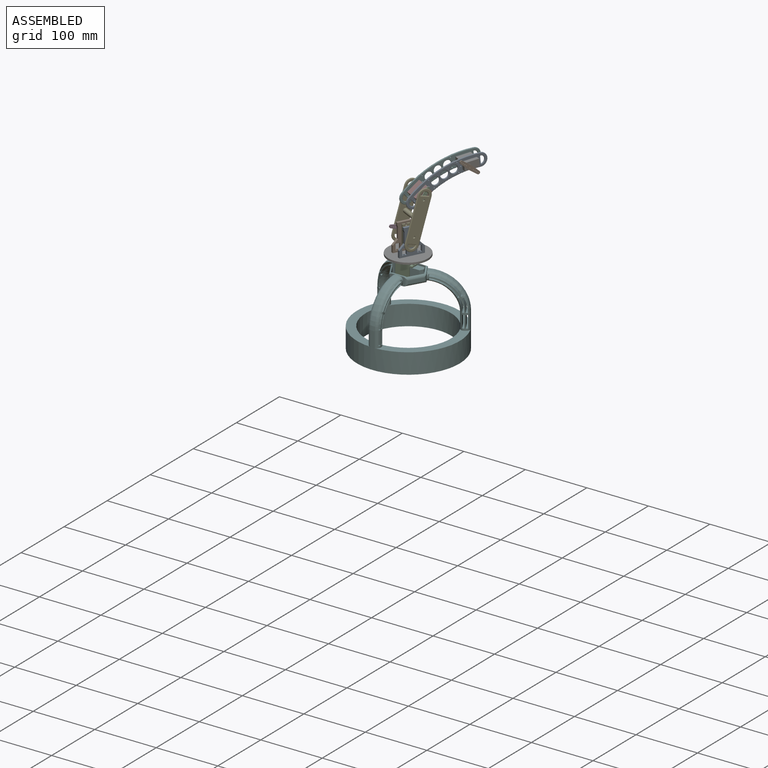
[diagram: assembled view]
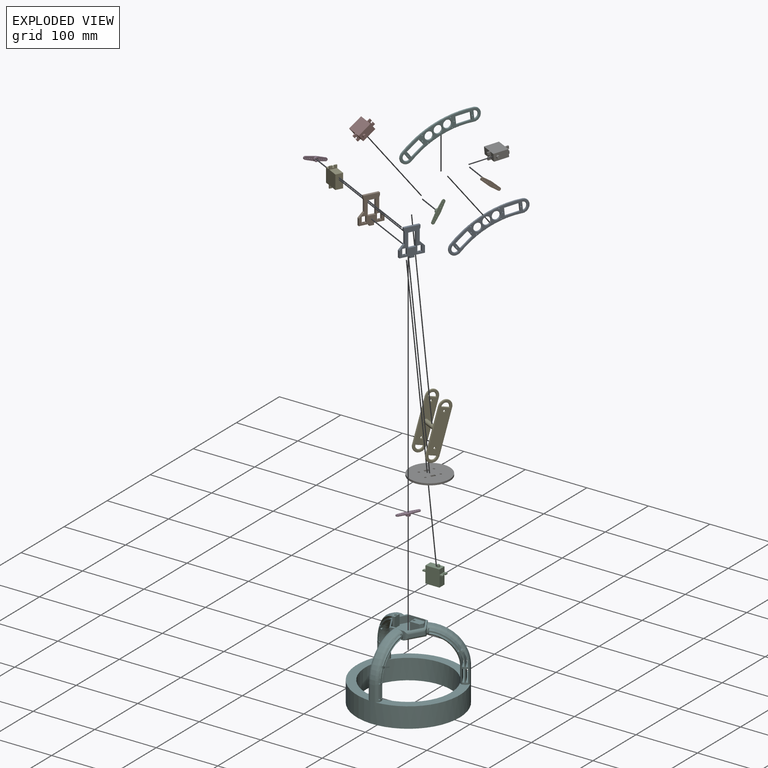
[diagram: exploded view]
GUIDED TOUR — MATED ASSEMBLY (Onshape document 5833d2684844fe110806e5fd, AutoMate assembly 5833d2684844fe110806e5fd_eefcba89f4eee4e6b97c06ca_92be6440ee8657cf6202d747_default)

This assembly has 15 components, labeled P0..P14 below (a component is one placed occurrence of a part; the same part can appear more than once), held together by 17 mates. A mate is a constraint between two components; its type names the relative motion it leaves free:
  FASTENED — locks the two components together rigidly (no relative motion),
  PARALLEL — keeps the two listed directions parallel,
  REVOLUTE — leaves rotation about the listed axis free (a hinge).
Axis/direction vectors are unit vectors and 'through' points are millimeter coordinates, both in the assembly's world frame.

MATES
  1. PARALLEL "Parallel 2": P14 <-> P0, direction (-0.044, -0.087, 0.995) through (37.46, 82.34, 259.15) mm
  2. REVOLUTE "Revolute 3": P9 <-> P14, axis (-0.891, 0.455, 0.000) through (49.95, 70.41, 252.75) mm
  3. PARALLEL "Parallel 3": P13 <-> P14, direction (0.044, 0.087, -0.995) through (26.51, 87.82, 259.14) mm
  4. REVOLUTE "Revolute 5": P10 <-> P4, axis (0.891, -0.455, 0.000) through (19.25, 6.36, 221.20) mm
  5. REVOLUTE "Revolute 2": P3 <-> P12, axis (0.891, -0.455, 0.000) through (-16.97, 8.48, 170.03) mm
  6. FASTENED "Fastened 9": P14 <-> P0, direction (-0.044, -0.087, 0.995) through (47.85, 91.07, 248.55) mm
  7. FASTENED "Fastened 7": P4 <-> P3, direction (0.891, -0.455, 0.000) through (-18.55, 9.29, 170.03) mm
  8. FASTENED "Fastened 6": P12 <-> P1, direction (-0.891, 0.455, 0.000) through (-6.93, 3.36, 175.87) mm
  9. FASTENED "Fastened 10": P14 <-> P13, direction (0.453, 0.886, 0.098) through (30.61, 98.58, 260.27) mm
  10. FASTENED "Fastened 3": P8 <-> P6, direction (0.000, 0.000, -1.000) through (9.78, -5.18, 137.77) mm
  11. REVOLUTE "Revolute 4": P10 <-> P7, axis (-0.891, 0.455, 0.000) through (17.66, 7.17, 221.20) mm
  12. FASTENED "Fastened 5": P6 <-> P11, direction (0.000, 0.000, -1.000) through (-0.35, 0.00, 137.77) mm
  13. FASTENED "Fastened 1": P2 <-> P5, direction (0.000, 0.000, -1.000) through (8.99, 0.00, 122.72) mm
  14. FASTENED "Fastened 8": P7 <-> P0, direction (-0.279, -0.546, 0.790) through (15.36, 27.44, 226.96) mm
  15. PARALLEL "Parallel 1": P0 <-> P7, direction (0.279, 0.546, -0.790) through (8.89, 12.03, 229.66) mm
  16. REVOLUTE "Revolute 1": P11 <-> P2, axis (0.000, 0.000, -1.000) through (-0.35, 0.00, 135.99) mm
  17. FASTENED "Fastened 2": P1 <-> P6, direction (0.000, 0.000, -1.000) through (-6.93, 3.36, 137.77) mm

ASSEMBLY ORDER
  1. P8 — the base component [order verified]
  2. P12 [order verified]
  3. P1 [order verified]
  4. P4 [order verified]
  5. P3 [order verified]
  6. P6 [order verified]
  7. P7 [order verified]
  8. P10 [order verified]
  9. P11 [order verified]
  10. P2 [order verified]
  11. P13 [order verified]
  12. P0 [order verified]
  13. P5 [order verified]
  14. P9 [order verified]
  15. P14 [order verified]
(P3, P10 verified with a relaxed clearance tolerance: the source model stores slight part interference there.)
Order-tag legend:
  [order verified] — this step's position reverses a verified removal order: the component was checked to insert without passing through the ones already placed.

Of the 15 components, 4 carry the full construction recipe — the FeatureScript program that regenerates the part's solid from scratch; the rest are supplied as boundary geometry only.
Because this assembly has more than 12 components, the tour below covers the 12 most significant ones individually (every recipe-attached component first, then the largest by part volume), in assembly order; the remaining 3 are summarized together in a grouped section at the end.
Each toured component is shown spotlighted twice — in the assembled view, then in the exploded view, where a leader line traces a displaced component back to its assembled socket (saturated green if recipe-attached, orange if geometry-only; every other component desaturated gray) — followed by its recipe or geometry summary and the mates that hold it.
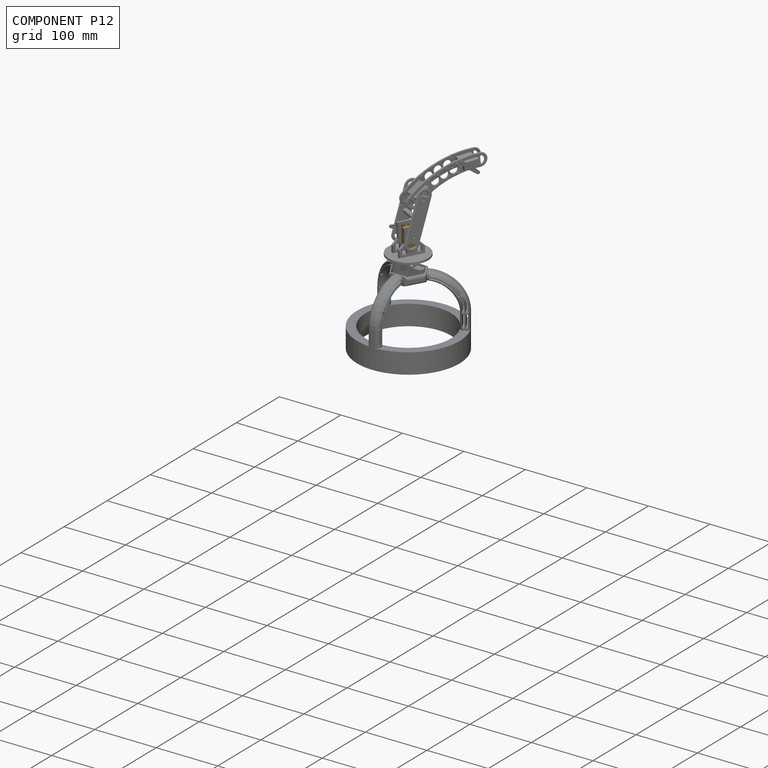
[diagram: component P12 — assembled]
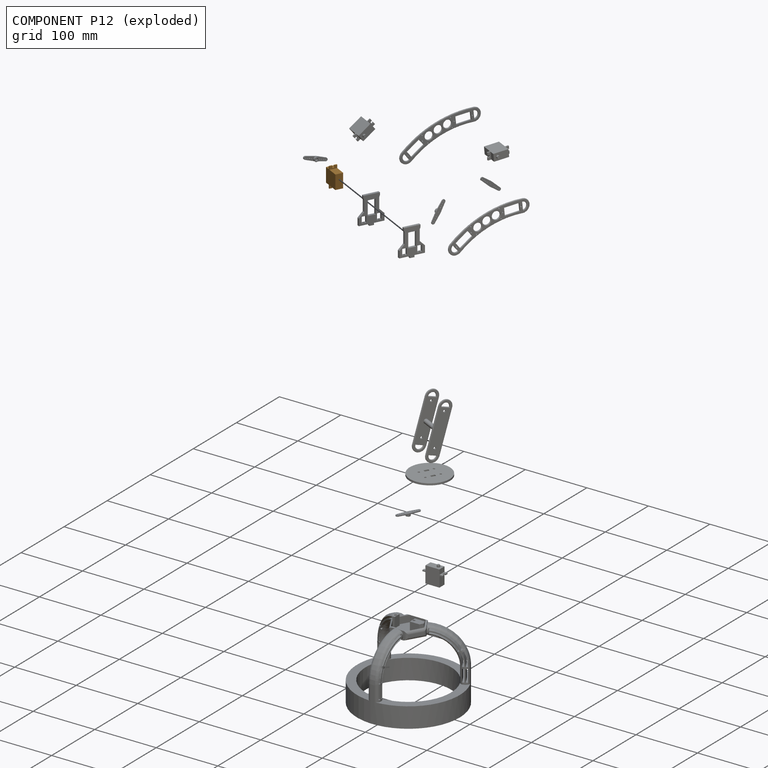
[diagram: component P12 — exploded]
COMPONENT P12 — geometry summary (no construction recipe available for this part):
  bounding box: 32.7 x 30.0 x 11.8 mm
  B-rep topology: 1 solid, 22 faces, 108 edges
  volume: 7407 mm^3 (64% of its bounding box)
  symmetry: mirror-symmetric across its z mid-plane
Held by: REVOLUTE mate "Revolute 2" to P3; FASTENED mate "Fastened 6" to P1.
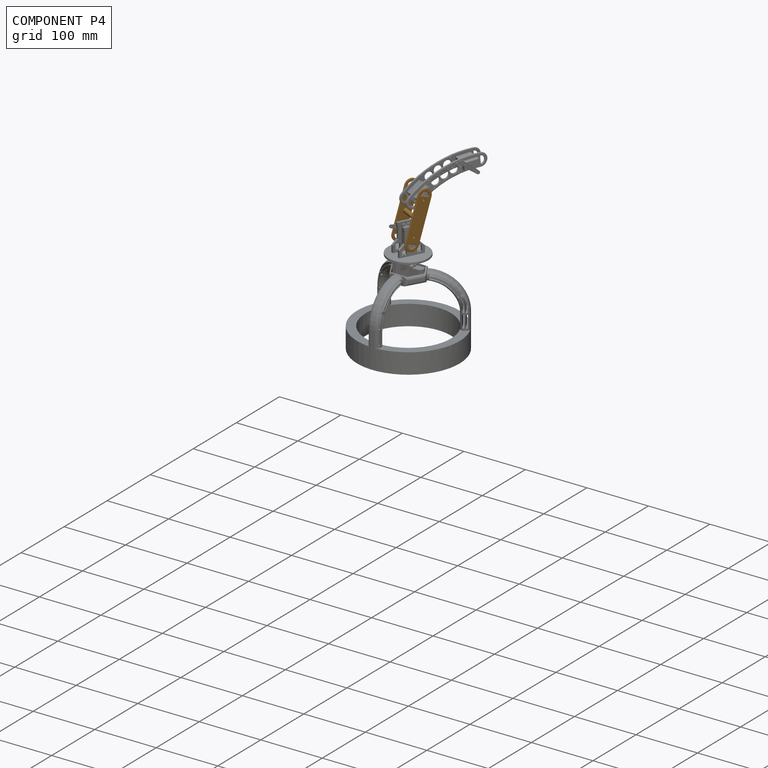
[diagram: component P4 — assembled]
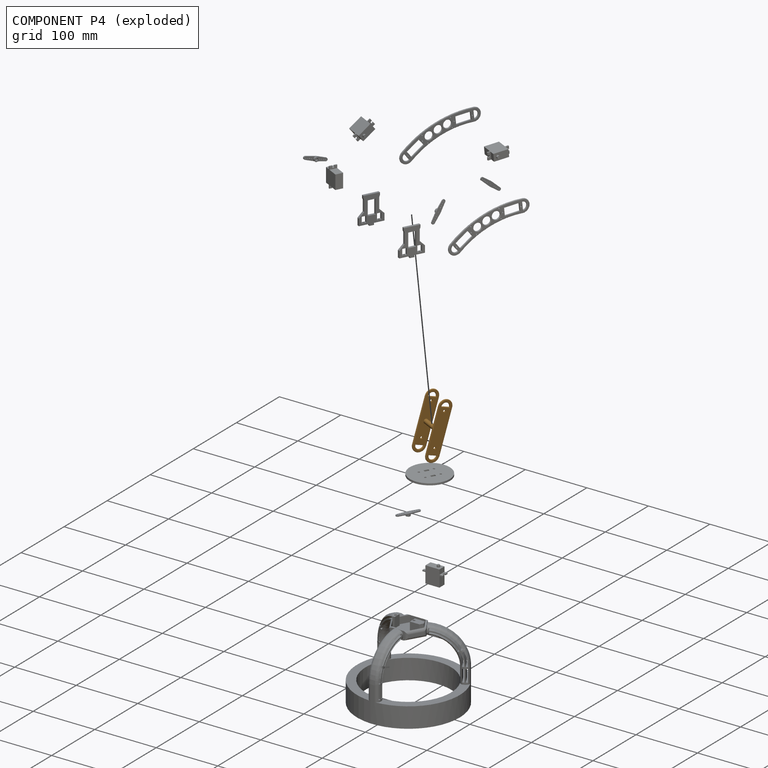
[diagram: component P4 — exploded]
COMPONENT P4 — geometry summary (no construction recipe available for this part):
  bounding box: 93.2 x 40.0 x 23.2 mm
  B-rep topology: 1 solid, 57 faces, 254 edges
  volume: 9747 mm^3 (11% of its bounding box)
  symmetry: 2-fold rotationally symmetric about the z axis; mirror-symmetric across its x mid-plane, y mid-plane
Held by: REVOLUTE mate "Revolute 5" to P10; FASTENED mate "Fastened 7" to P3.
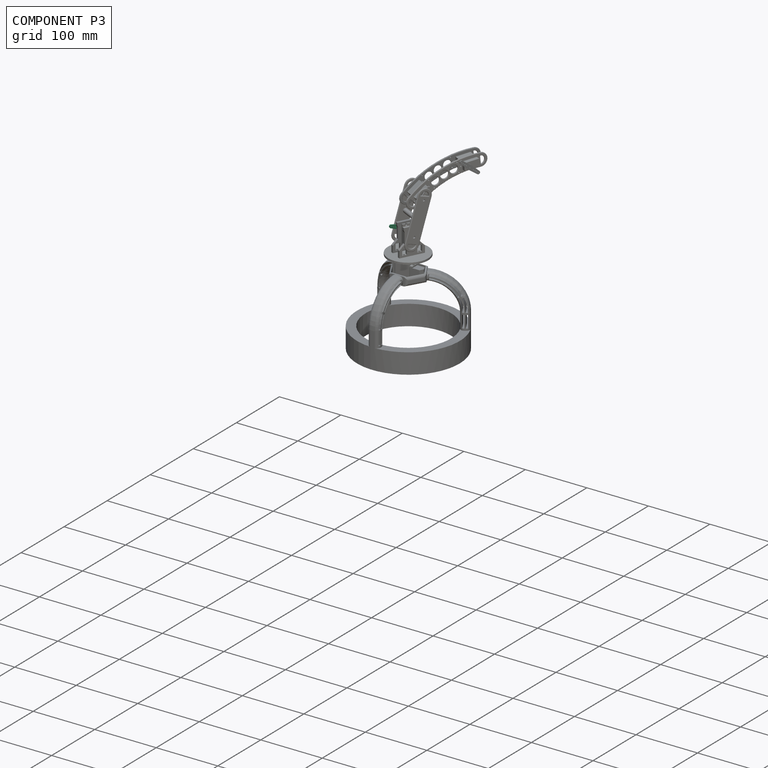
[diagram: component P3 — assembled]
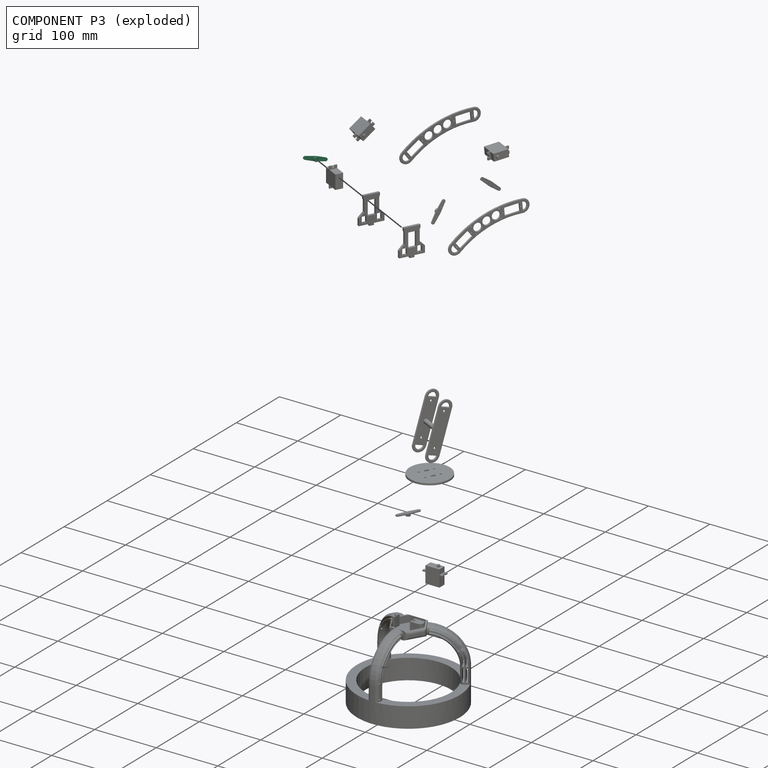
[diagram: component P3 — exploded]
COMPONENT P3 — recipe-attached (CADFS 00342071, mesh-verified: the recipe's output STEP matches this component's geometry to below the mesh-comparison resolution (tessellation chordal tolerance ~0.0577 mm)).
Held by: REVOLUTE mate "Revolute 2" to P12; FASTENED mate "Fastened 7" to P4.
Construction recipe (FeatureScript — the CAD program that rebuilds this solid; sketch coordinates are in the units given by the * unit suffixes, e.g. mm):

FeatureScript 1549;
import(path : "onshape/std/geometry.fs", version : "1549.0");
import(path : "onshape/std/common.fs", version : "1549.0");
const mm = millimeter;
const VERTEX = EntityType.VERTEX;
const EDGE = EntityType.EDGE;
const FACE = EntityType.FACE;
const BODY = EntityType.BODY;
function v(x, y){return vector(x, y);}
function OD(order){return orderDisambiguation(order);}
function OSD(set){return originalSetDisambiguation(set);}
function TD(topology){return topologyDisambiguation(topology);}
function TDD(query){return trueDependencyDisambiguation(query);}
function sQuery(a, b, c) {return sketchEntityQuery(a, b, c);}

annotation { "Feature Type Name" : "Feature", "Feature Type Description" : "" }
export const myFeature = defineFeature(function(context is Context, id is Id, definition is map)
    precondition{}
    {
        {
            var Q0;
            Q0=qCreatedBy(makeId("Top.planeOp"),FACE);
            var sketch = newSketch(context, id + "F0", { "sketchPlane" : qUnion([Q0])});
            skArc(sketch, "E0", {"start": v(-3.57, 0.48) * mm, "mid": v(0, -3.6) * mm, "end": v(3.57, 0.48) * mm, "construction": true});
            skArc(sketch, "E1", {"start": v(2.5, 16.4) * mm, "mid": v(0, 18.73) * mm, "end": v(-2.5, 16.4) * mm});
            skPoint(sketch, "E2", {"position": v(0, 18.73) * mm});
            skLineSegment(sketch, "E3", {"start": v(-3.6, 0) * mm, "end": v(-2.5, 16.4) * mm});
            skLineSegment(sketch, "E4", {"start": v(3.6, 0) * mm, "end": v(2.5, 16.4) * mm});
            skCircle(sketch, "E5", {"center": v(0, 16.05) * mm, "radius": 0.69 * mm});
            skCircle(sketch, "E6.0.1.0", {"center": v(0, 12.92) * mm, "radius": 0.69 * mm});
            skCircle(sketch, "E6.0.2.0", {"center": v(0, 9.79) * mm, "radius": 0.69 * mm});
            skCircle(sketch, "E6.0.3.0", {"center": v(0, 6.66) * mm, "radius": 0.69 * mm});
            skLineSegment(sketch, "E6.direction1", {"start": v(0, 16.05) * mm, "end": v(25, 16.05) * mm, "construction": true});
            skLineSegment(sketch, "E6.direction2", {"start": v(0, 16.05) * mm, "end": v(0, 12.92) * mm, "construction": true});
            skLineSegment(sketch, "E7", {"start": v(-16.15, 0) * mm, "end": v(19.67, 0) * mm, "construction": true});
            skCircle(sketch, "E8.MirrorC", {"center": v(0, -16.05) * mm, "radius": 0.69 * mm});
            skArc(sketch, "E9.MirrorCS", {"start": v(2.5, -16.4) * mm, "mid": v(0, -18.73) * mm, "end": v(-2.5, -16.4) * mm});
            skLineSegment(sketch, "E10.MirrorCS", {"start": v(0, -16.05) * mm, "end": v(0, -12.92) * mm, "construction": true});
            skCircle(sketch, "E11.MirrorC", {"center": v(0, -12.92) * mm, "radius": 0.69 * mm});
            skPoint(sketch, "E12.MirrorP", {"position": v(0, -18.73) * mm});
            skCircle(sketch, "E13.MirrorC", {"center": v(0, -9.79) * mm, "radius": 0.69 * mm});
            skCircle(sketch, "E14.MirrorC", {"center": v(0, -6.66) * mm, "radius": 0.69 * mm});
            skLineSegment(sketch, "E15.MirrorCS", {"start": v(0, -16.05) * mm, "end": v(25, -16.05) * mm, "construction": true});
            skLineSegment(sketch, "E16.MirrorCS", {"start": v(3.6, 0) * mm, "end": v(2.5, -16.4) * mm});
            skLineSegment(sketch, "E17.MirrorCS", {"start": v(-3.6, 0) * mm, "end": v(-2.5, -16.4) * mm});
            skSolve(sketch);
        }
        {
            var Q0;
            Q0 = qSketchRegion(id + "F0", true);
            extrude(context, id + "F1", {"entities" : qUnion([Q0]), "depth" : 1.78 * mm});
        }
        {
            var Q0;
            Q0=makeQuery(id+"F1.opExtrude","CAP_FACE",FACE,{"disambiguationData":[OSD([sQuery(id+"F0.wireOp",EDGE,"E1"),sQuery(id+"F0.wireOp",EDGE,"E3"),sQuery(id+"F0.wireOp",EDGE,"E4"),sQuery(id+"F0.wireOp",EDGE,"E5"),sQuery(id+"F0.wireOp",EDGE,"E6.0.1.0"),sQuery(id+"F0.wireOp",EDGE,"E6.0.2.0"),sQuery(id+"F0.wireOp",EDGE,"E6.0.3.0"),sQuery(id+"F0.wireOp",EDGE,"E8.MirrorC"),sQuery(id+"F0.wireOp",EDGE,"E9.MirrorCS"),sQuery(id+"F0.wireOp",EDGE,"E11.MirrorC"),sQuery(id+"F0.wireOp",EDGE,"E13.MirrorC"),sQuery(id+"F0.wireOp",EDGE,"E14.MirrorC"),sQuery(id+"F0.wireOp",EDGE,"E16.MirrorCS"),sQuery(id+"F0.wireOp",EDGE,"E17.MirrorCS")])],"isStart":false});
            var sketch = newSketch(context, id + "F2", { "sketchPlane" : qUnion([Q0])});
            skCircle(sketch, "E18", {"center": v(0, 0) * mm, "radius": 3.5 * mm});
            skCircle(sketch, "E19.0", {"center": v(0, 0) * mm, "radius": 2.12 * mm});
            skSolve(sketch);
        }
        {
            var Q0;
            Q0 = qSketchRegion(id + "F2", true);
            var Q1;
            Q1 = qConstructionFilter(qBodyType(qCreatedBy(id + "F2" ,EDGE), BodyType.WIRE), ConstructionObject.NO);
            extrude(context, id + "F3", {"entities" : qUnion([Q0]), "operationType" : NewBodyOperationType.ADD, "surfaceEntities" : qUnion([Q1]), "depth" : 3.02 * mm});
        }
        {
            var Q0;
            Q0=makeQuery(id+"F3.boolean.opBoolean","SPLIT",FACE,{"disambiguationData":[TD([makeQuery(id+"F3.opExtrude","SWEPT_FACE",FACE,{"disambiguationData":[OSD([sQuery(id+"F2.wireOp",EDGE,"E19.0")])]})])],"derivedFrom":makeQuery(id+"F1.opExtrude","CAP_FACE",FACE,{"disambiguationData":[OSD([sQuery(id+"F0.wireOp",EDGE,"E1"),sQuery(id+"F0.wireOp",EDGE,"E3"),sQuery(id+"F0.wireOp",EDGE,"E4"),sQuery(id+"F0.wireOp",EDGE,"E5"),sQuery(id+"F0.wireOp",EDGE,"E6.0.1.0"),sQuery(id+"F0.wireOp",EDGE,"E6.0.2.0"),sQuery(id+"F0.wireOp",EDGE,"E6.0.3.0"),sQuery(id+"F0.wireOp",EDGE,"E8.MirrorC"),sQuery(id+"F0.wireOp",EDGE,"E9.MirrorCS"),sQuery(id+"F0.wireOp",EDGE,"E11.MirrorC"),sQuery(id+"F0.wireOp",EDGE,"E13.MirrorC"),sQuery(id+"F0.wireOp",EDGE,"E14.MirrorC"),sQuery(id+"F0.wireOp",EDGE,"E16.MirrorCS"),sQuery(id+"F0.wireOp",EDGE,"E17.MirrorCS")])],"isStart":false})});
            var sketch = newSketch(context, id + "F4", { "sketchPlane" : qUnion([Q0])});
            skCircle(sketch, "E20", {"center": v(0, 0) * mm, "radius": 0.58 * mm});
            skSolve(sketch);
        }
        {
            var Q0;
            Q0 = qSketchRegion(id + "F4", true);
            extrude(context, id + "F5", {"entities" : qUnion([Q0]), "operationType" : NewBodyOperationType.REMOVE, "endBound" : BoundingType.UP_TO_NEXT, "oppositeDirection" : true, "depth" : 25 * mm});
        }
    });
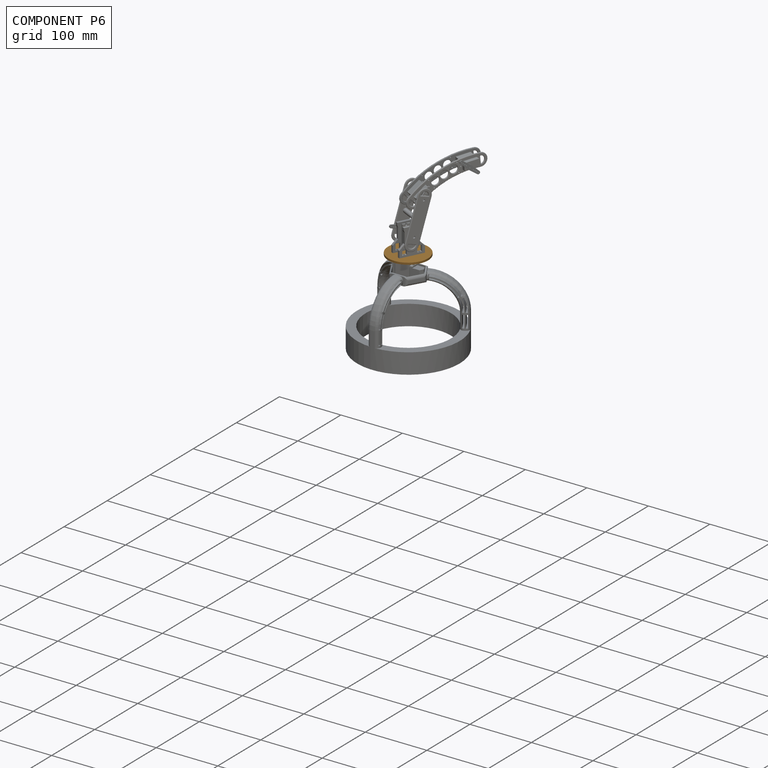
[diagram: component P6 — assembled]
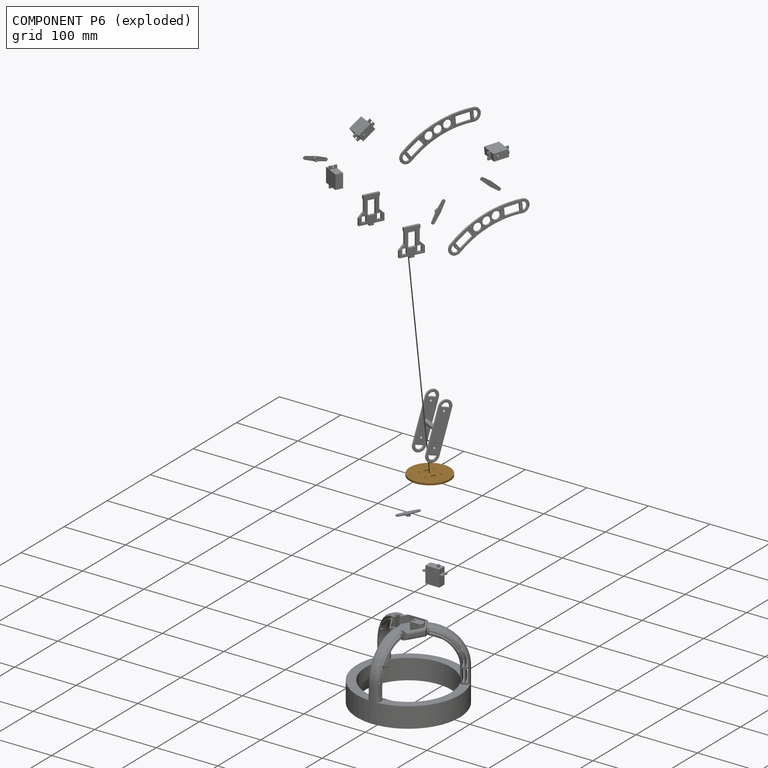
[diagram: component P6 — exploded]
COMPONENT P6 — geometry summary (no construction recipe available for this part):
  bounding box: 65.0 x 65.0 x 3.0 mm
  B-rep topology: 1 solid, 15 faces, 86 edges
  volume: 9690 mm^3 (76% of its bounding box)
  symmetry: 2-fold rotationally symmetric about the x axis; 2-fold rotationally symmetric about the y axis; 2-fold rotationally symmetric about the z axis; mirror-symmetric across its x mid-plane, y mid-plane, z mid-plane
Held by: FASTENED mate "Fastened 3" to P8; FASTENED mate "Fastened 5" to P11; FASTENED mate "Fastened 2" to P1.
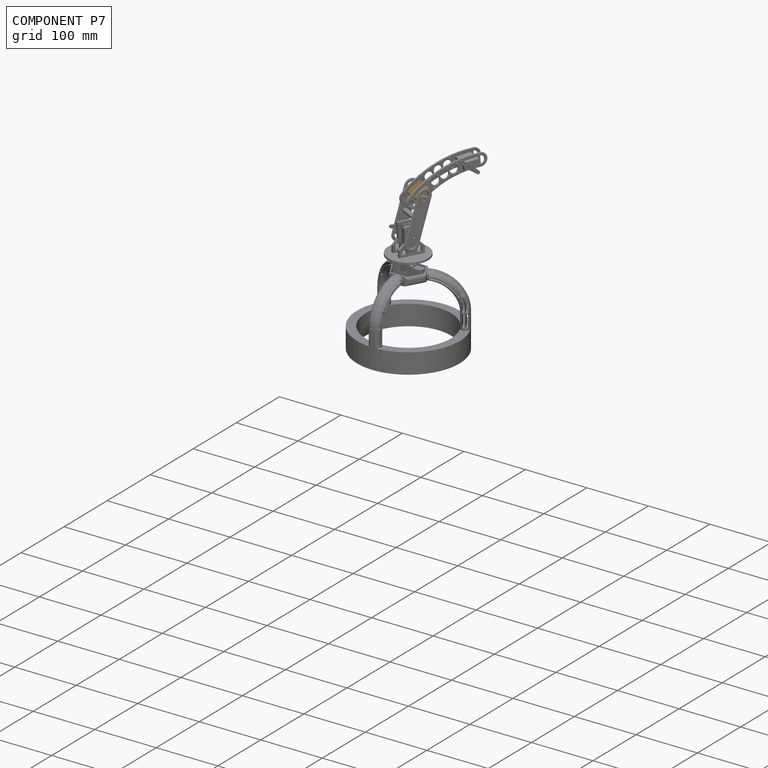
[diagram: component P7 — assembled]
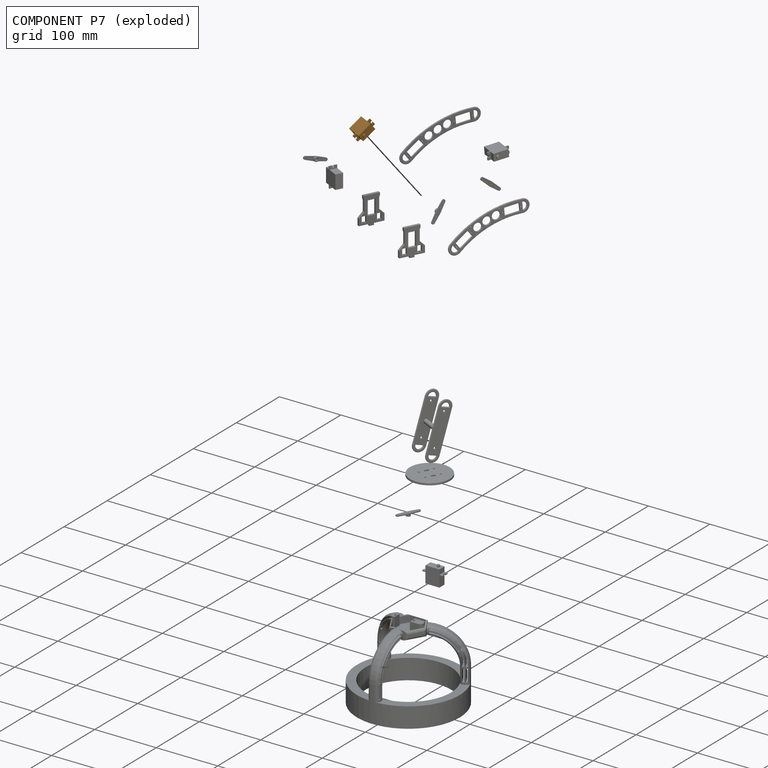
[diagram: component P7 — exploded]
COMPONENT P7 — geometry summary (no construction recipe available for this part):
  bounding box: 32.7 x 30.0 x 11.8 mm
  B-rep topology: 1 solid, 22 faces, 108 edges
  volume: 7407 mm^3 (64% of its bounding box)
  symmetry: mirror-symmetric across its z mid-plane
Held by: REVOLUTE mate "Revolute 4" to P10; FASTENED mate "Fastened 8" to P0; PARALLEL mate "Parallel 1" to P0.
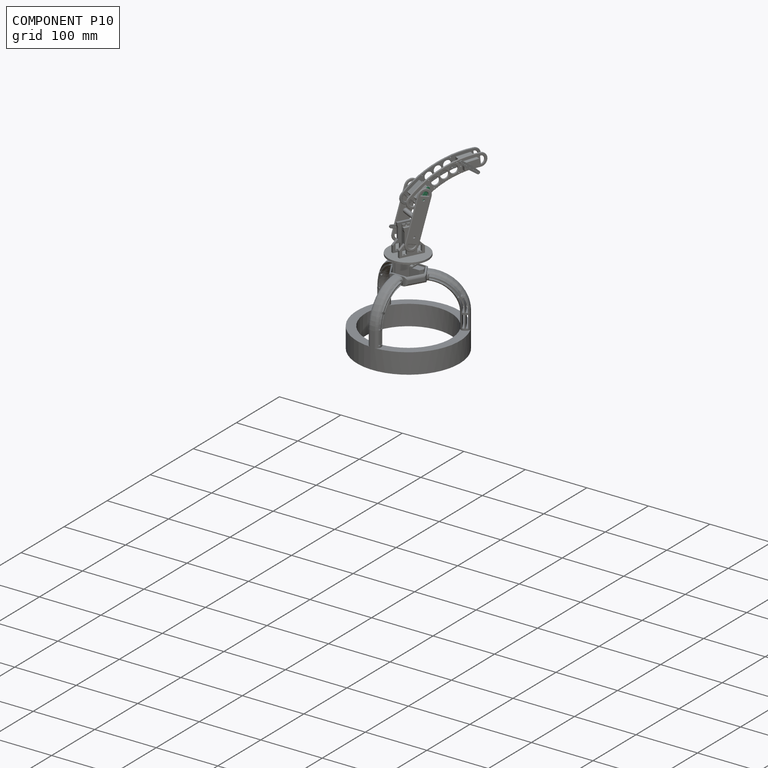
[diagram: component P10 — assembled]
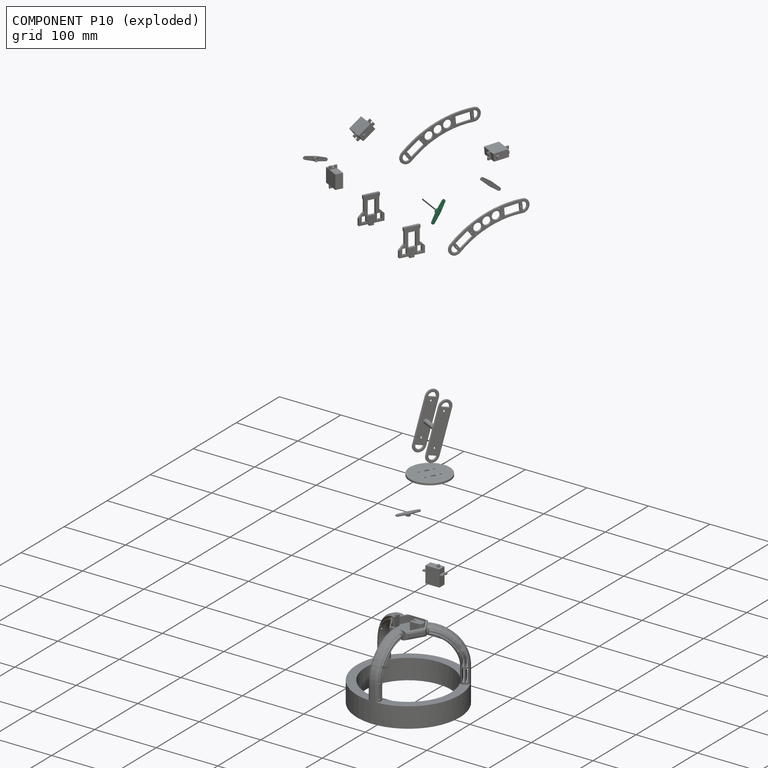
[diagram: component P10 — exploded]
COMPONENT P10 — same part as P3 (CADFS 00342071); its construction recipe is shown at P3.
Held by: REVOLUTE mate "Revolute 5" to P4; REVOLUTE mate "Revolute 4" to P7.
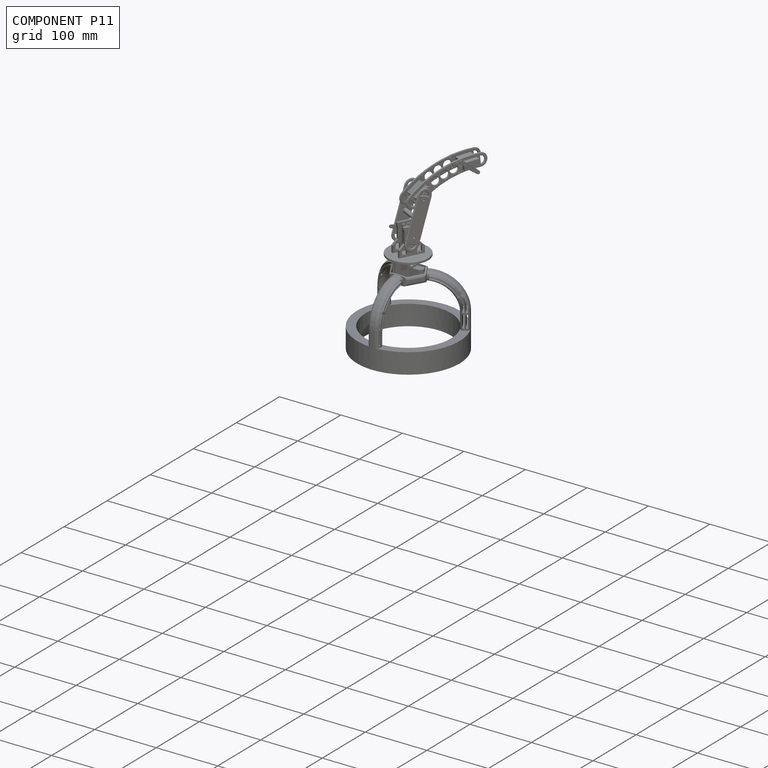
[diagram: component P11 — assembled]
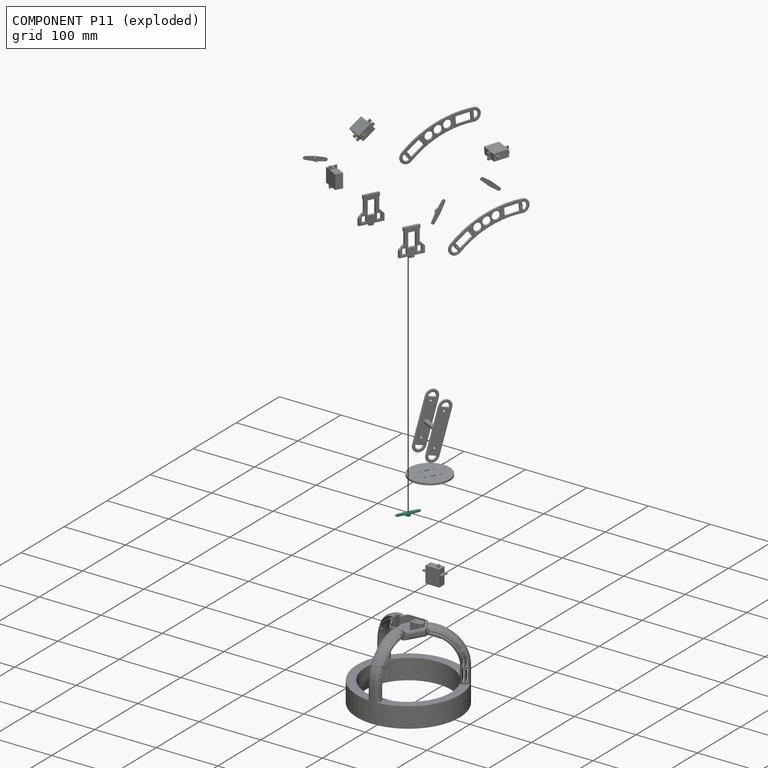
[diagram: component P11 — exploded]
COMPONENT P11 — same part as P3 (CADFS 00342071); its construction recipe is shown at P3.
Held by: FASTENED mate "Fastened 5" to P6; REVOLUTE mate "Revolute 1" to P2.
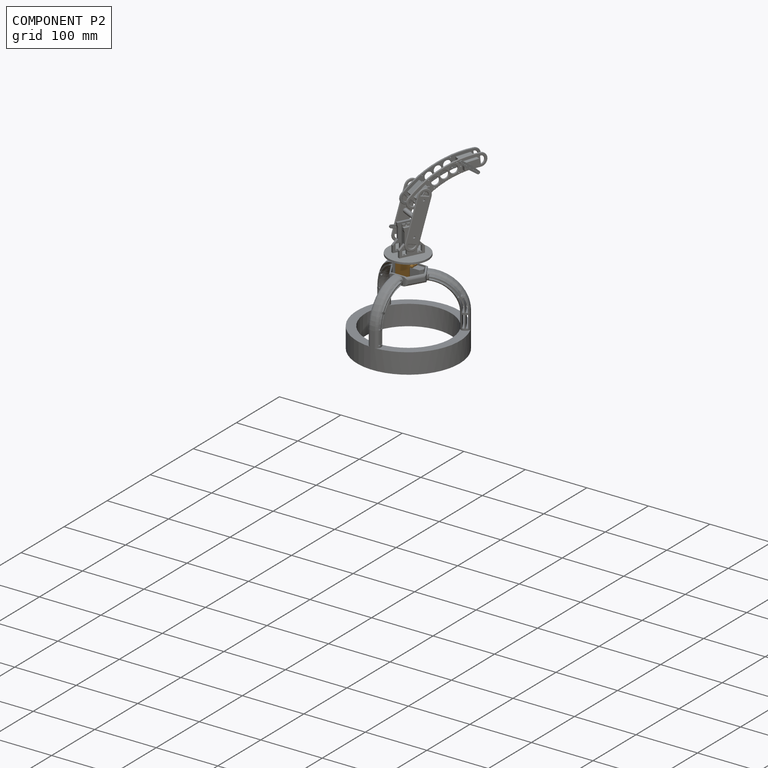
[diagram: component P2 — assembled]
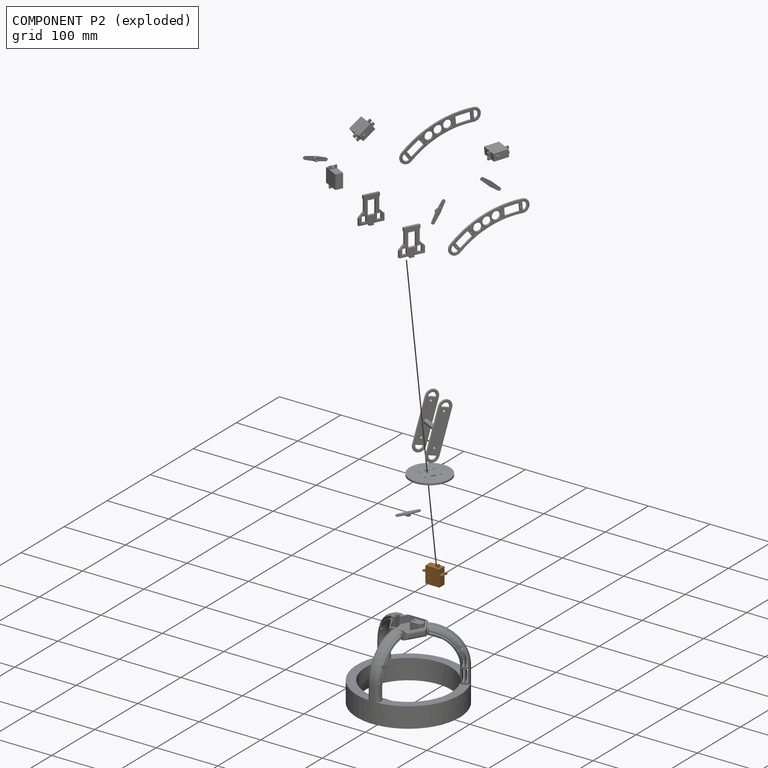
[diagram: component P2 — exploded]
COMPONENT P2 — geometry summary (no construction recipe available for this part):
  bounding box: 32.7 x 30.0 x 11.8 mm
  B-rep topology: 1 solid, 22 faces, 108 edges
  volume: 7407 mm^3 (64% of its bounding box)
  symmetry: mirror-symmetric across its z mid-plane
Held by: FASTENED mate "Fastened 1" to P5; REVOLUTE mate "Revolute 1" to P11.
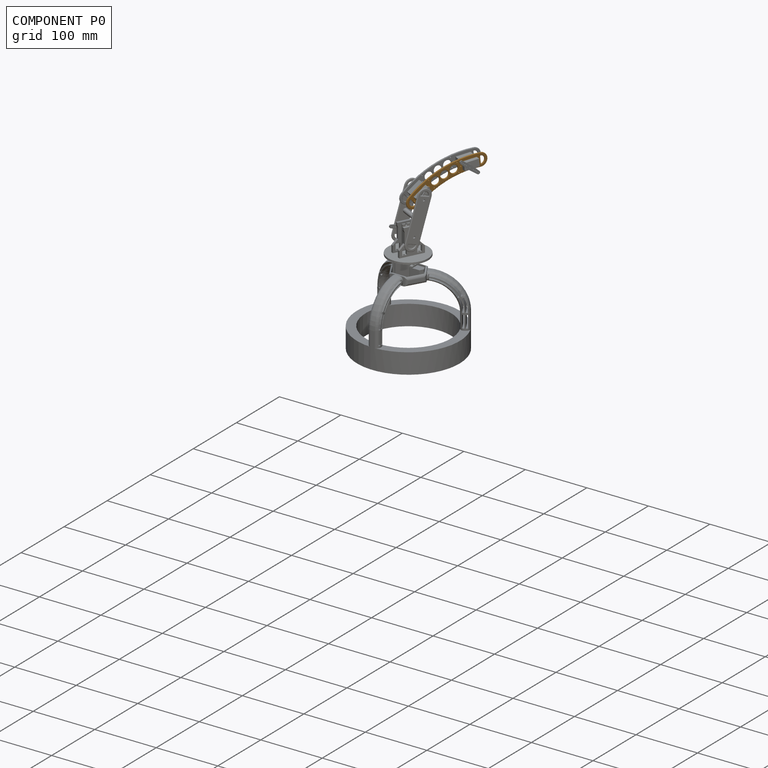
[diagram: component P0 — assembled]
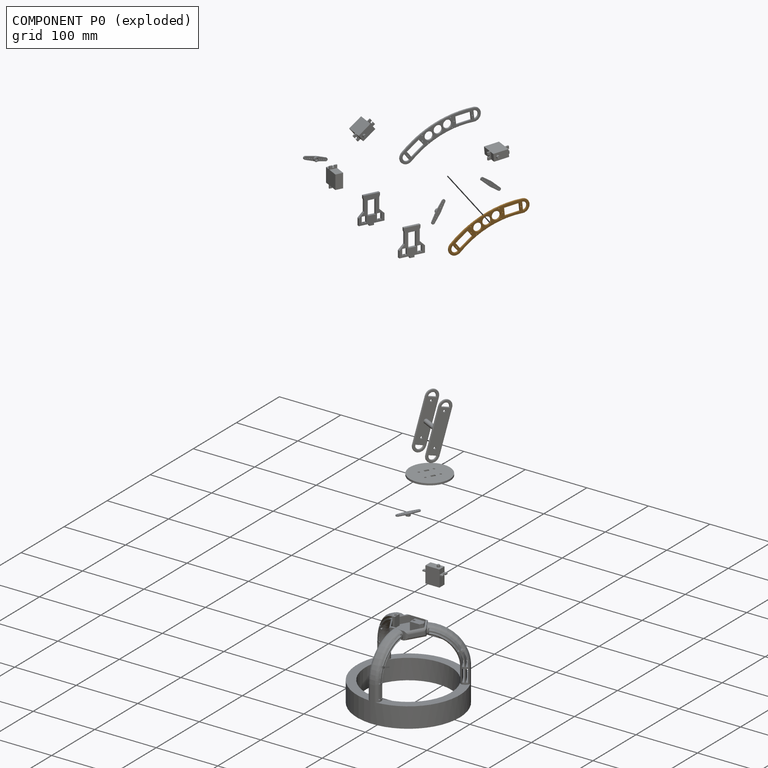
[diagram: component P0 — exploded]
COMPONENT P0 — geometry summary (no construction recipe available for this part):
  bounding box: 128.5 x 76.5 x 2.5 mm
  B-rep topology: 1 solid, 49 faces, 262 edges
  volume: 4003 mm^3 (16% of its bounding box)
  symmetry: mirror-symmetric across its y mid-plane
Held by: PARALLEL mate "Parallel 2" to P14; FASTENED mate "Fastened 9" to P14; FASTENED mate "Fastened 8" to P7; PARALLEL mate "Parallel 1" to P7.
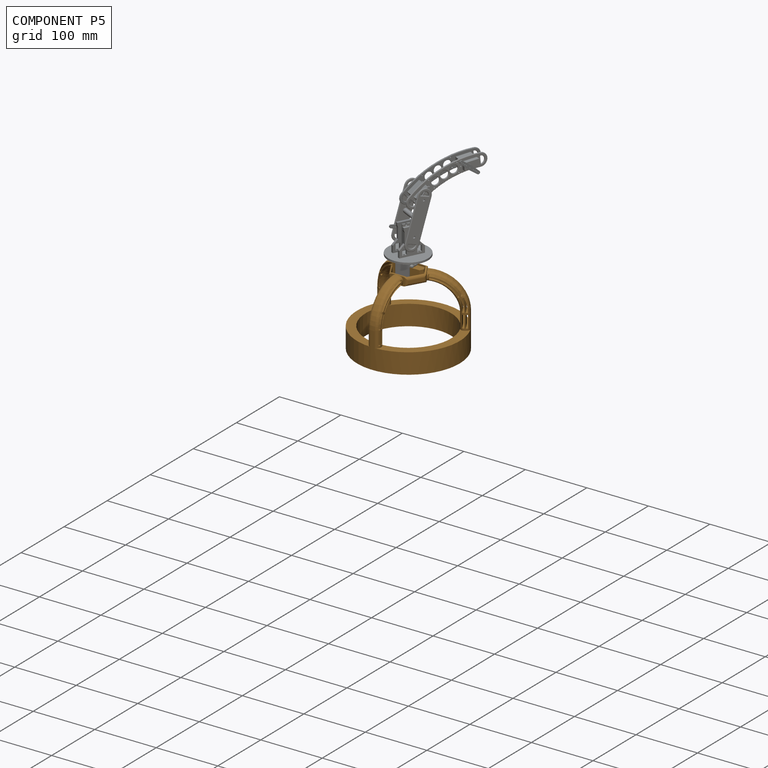
[diagram: component P5 — assembled]
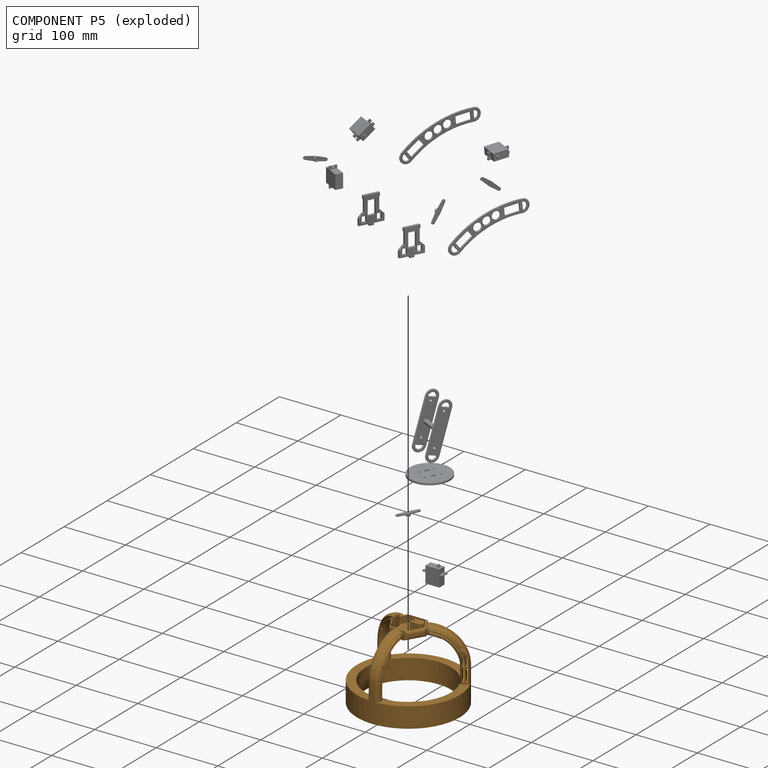
[diagram: component P5 — exploded]
COMPONENT P5 — geometry summary (no construction recipe available for this part):
  bounding box: 171.7 x 167.1 x 122.8 mm
  B-rep topology: 1 solid, 187 faces, 1132 edges
  volume: 173791 mm^3 (5% of its bounding box)
Held by: FASTENED mate "Fastened 1" to P2.
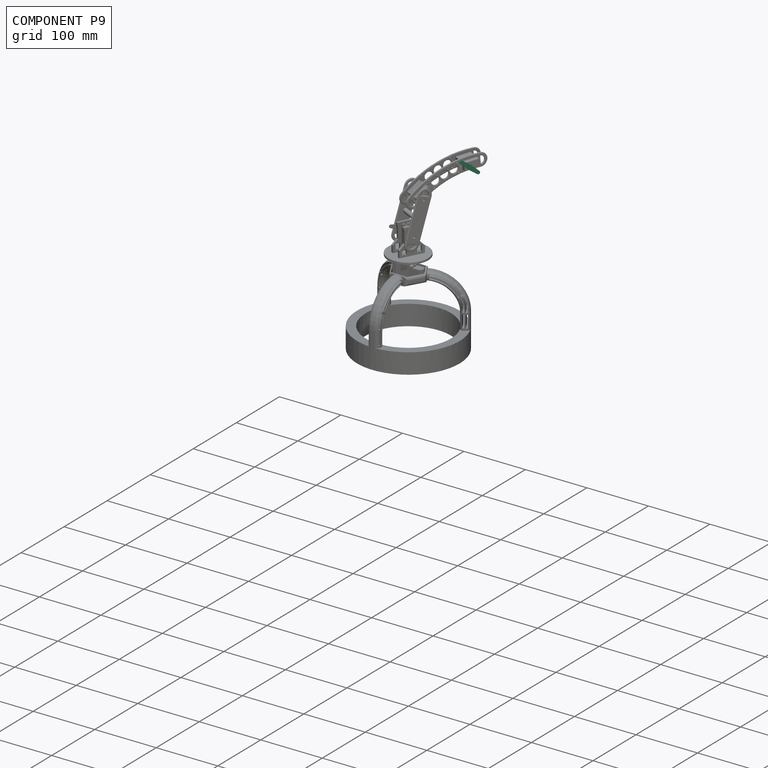
[diagram: component P9 — assembled]
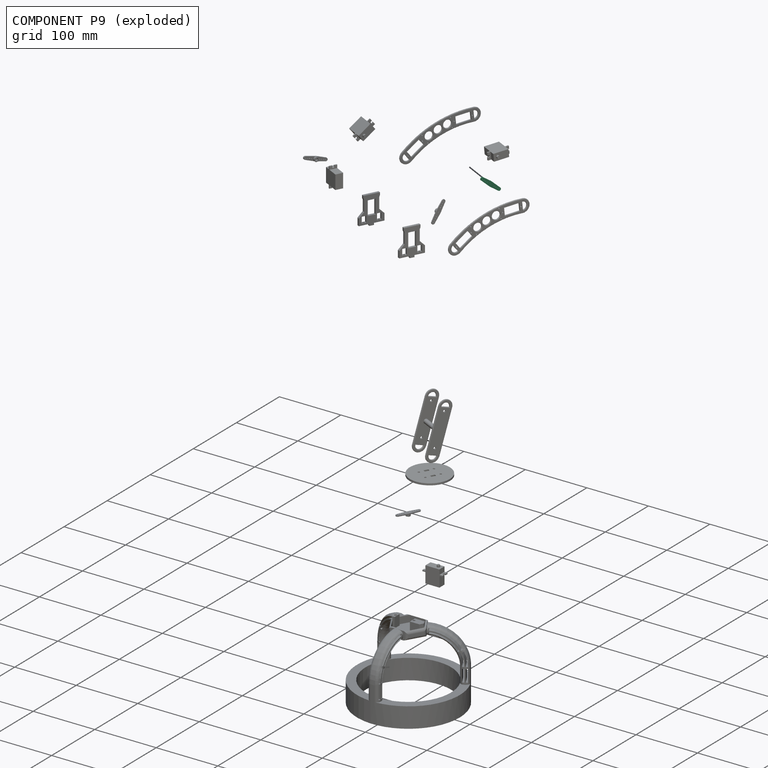
[diagram: component P9 — exploded]
COMPONENT P9 — same part as P3 (CADFS 00342071); its construction recipe is shown at P3.
Held by: REVOLUTE mate "Revolute 3" to P14.
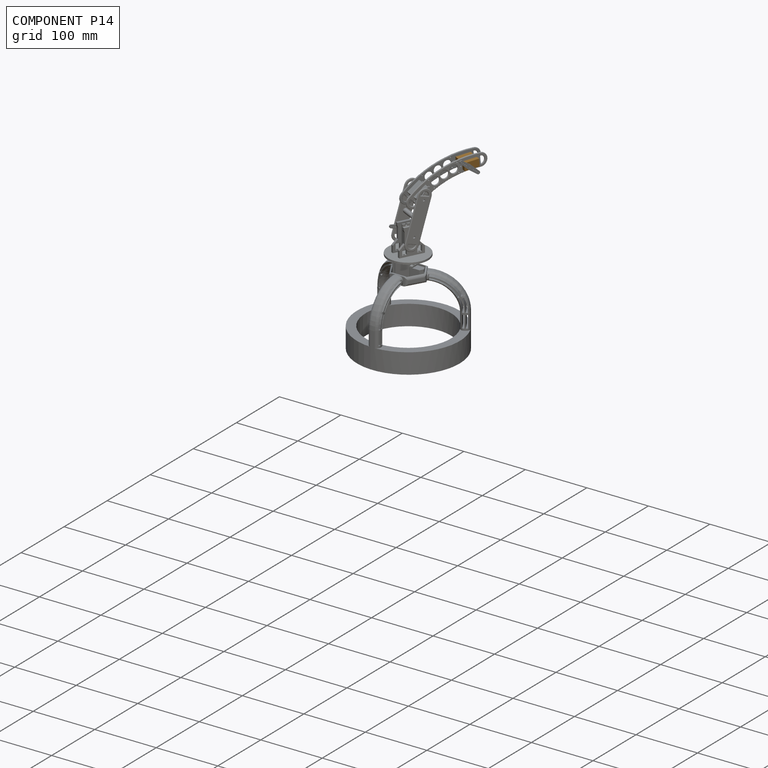
[diagram: component P14 — assembled]
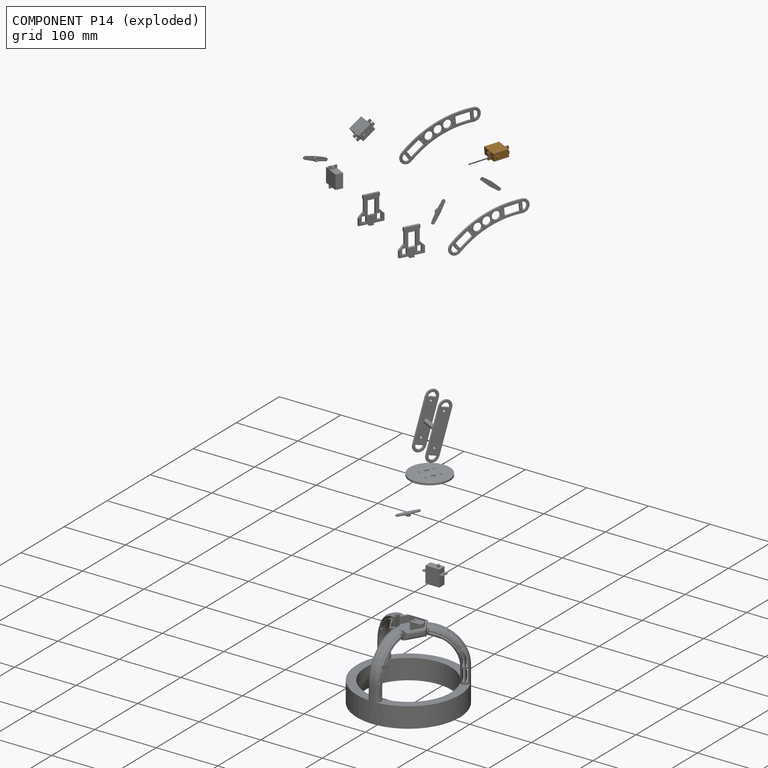
[diagram: component P14 — exploded]
COMPONENT P14 — geometry summary (no construction recipe available for this part):
  bounding box: 32.7 x 30.0 x 11.8 mm
  B-rep topology: 1 solid, 22 faces, 108 edges
  volume: 7407 mm^3 (64% of its bounding box)
  symmetry: mirror-symmetric across its z mid-plane
Held by: PARALLEL mate "Parallel 2" to P0; REVOLUTE mate "Revolute 3" to P9; PARALLEL mate "Parallel 3" to P13; FASTENED mate "Fastened 9" to P0; FASTENED mate "Fastened 10" to P13.
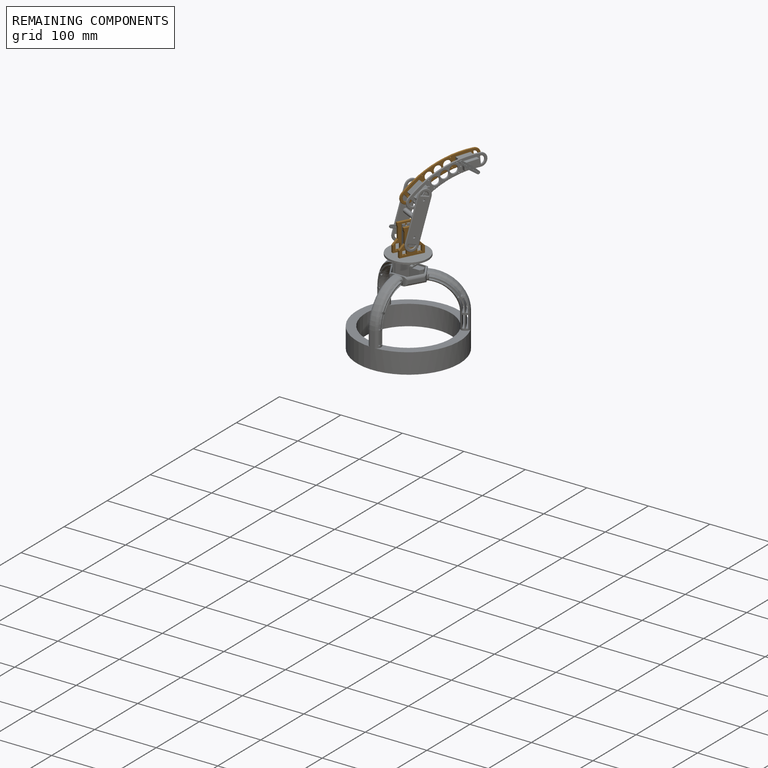
[diagram: remaining components — assembled]
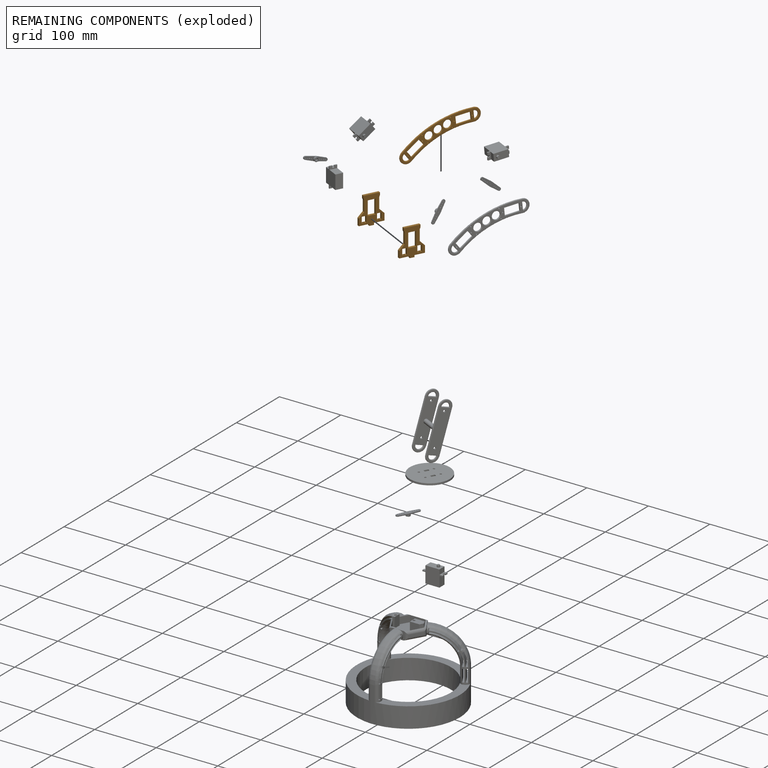
[diagram: remaining components — exploded]
REMAINING COMPONENTS (grouped) — the 3 components below fall outside the per-component tour by the significance rule stated above; both spotlight views highlight the whole group.
  P8: bounding box 46.0 x 38.7 x 4.0 mm, volume 3286 mm^3. Held by: FASTENED mate "Fastened 3" to P6.
  P1: bounding box 46.0 x 38.7 x 4.0 mm, volume 3286 mm^3. Held by: FASTENED mate "Fastened 6" to P12; FASTENED mate "Fastened 2" to P6.
  P13: bounding box 128.5 x 76.5 x 2.5 mm, volume 4003 mm^3. Held by: PARALLEL mate "Parallel 3" to P14; FASTENED mate "Fastened 10" to P14.
PROVENANCE & LICENSES
Assembly (occurrences, transforms, mates, per-part STEP geometry): AutoMate dataset, Zenodo record 7776208, CC0.
Construction recipes: CADFS (HuggingFace VladPyatov/CADFS, CC-BY-4.0, layered over the ABC dataset), FeatureScript reconstruction programs keyed by ABC model id.
Join: ABC meta listings map ABC model id -> Onshape documentId; within a shared document, parts are matched by geometric signature (bounding-box dims + volume at 0.1% relative tolerance, exact B-rep face/solid counts).
Verification: 4 of this assembly's 15 components carry a recipe attachment, and every attachment is mesh-verified: the CADFS STEP and the AutoMate member STEP were compared as meshes in their shared local frame (symmetric sampled-point-to-mesh distance); worst across the 4 attachments: below the mesh-comparison resolution (tessellation chordal tolerance ~0.0577 mm) on a 38 mm part.
Renders: orthographic iso camera (az 35 / el 25); the floor grid conveys scale (grid pitch printed in each image; no ruler). In the exploded view each component is displaced by its stored offset vector: the offsets alone carry the explosion direction (mate normal/axis signs are not orientation cues and do not encode it), and separation distances are assigned per mate-chain, not proportionally to assembly-order depth.
